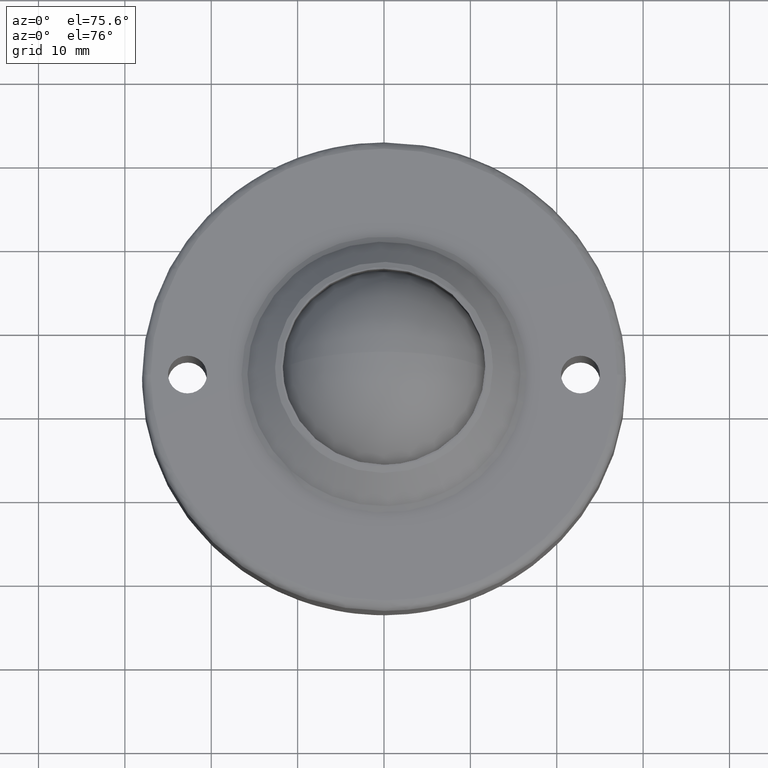
[diagram: clean part render]
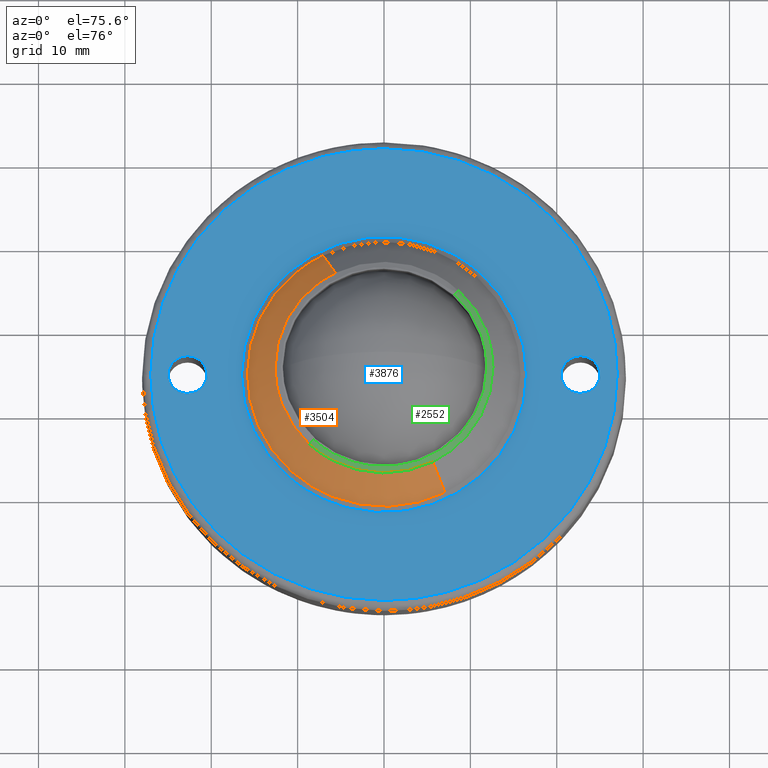
[diagram: same view with three faces highlighted in distinct colors, each labeled with its STEP entity id]
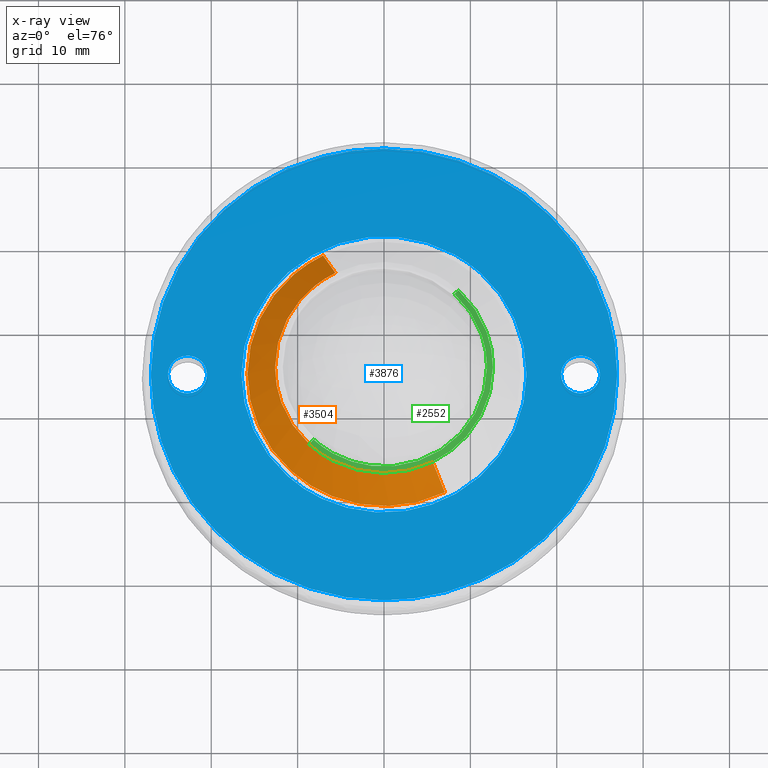
[diagram: x-ray of the same camera — body ghosted, the three highlighted faces saturated]
A machine part, auxiliary view with three faces highlighted in distinct colors.
The next image is the same camera in x-ray (body ghosted, the three faces saturated) — at least one of them is partly hidden behind the body in this view.
Their STEP definitions:

[orange] entity #3504 — the highlighted face is a freeform B-spline surface patch.
#2420=CARTESIAN_POINT('',(-5.629168605710653,11.290365538528540,7.323537246144431));
#2421=VERTEX_POINT('',#2420);
#2436=CARTESIAN_POINT('',(-12.615858797116291,0.0,7.323537245918689));
#2437=VERTEX_POINT('',#2436);
#2438=CARTESIAN_POINT('',(-12.615858797116291,0.0,7.323537245918689));
#2439=CARTESIAN_POINT('',(-12.616053298594800,0.946710319639604,7.323537245924229));
#2440=CARTESIAN_POINT('',(-12.430514682036780,2.585137362794273,7.323537245938057));
#2441=CARTESIAN_POINT('',(-11.778316491133230,4.639656935247343,7.323537245964977));
#2442=CARTESIAN_POINT('',(-11.095646420878850,6.051870617725675,7.323537245988847));
#2443=CARTESIAN_POINT('',(-10.232699549135480,7.446540067851863,7.323537246016722));
#2444=CARTESIAN_POINT('',(-9.187490578544059,8.717144893579718,7.323537246048050));
#2445=CARTESIAN_POINT('',(-7.585035491523128,10.153913804759251,7.323537246093079));
#2446=CARTESIAN_POINT('',(-6.411286023242364,10.900545622734340,7.323537246124280));
#2447=CARTESIAN_POINT('',(-5.629168605710653,11.290365538528540,7.323537246144431));
#2448=B_SPLINE_CURVE_WITH_KNOTS('',3,(#2438,#2439,#2440,#2441,#2442,#2443,#2444,#2445,#2446,#2447),.UNSPECIFIED.,.F.,.U.,(4,1,1,1,1,1,1,4),(0.000000017054921,2.840091102676922,4.915555659835825,6.444844659417327,7.537154786549262,9.831089186078156,11.360379359570761,13.981999071858491),.UNSPECIFIED.);
#2449=EDGE_CURVE('',#2437,#2421,#2448,.T.);
#2451=CARTESIAN_POINT('',(-8.636149627959952,-9.196565270632963,7.323537246495369));
#2452=VERTEX_POINT('',#2451);
#2453=CARTESIAN_POINT('',(-8.636149627959952,-9.196565270632963,7.323537246495369));
#2454=CARTESIAN_POINT('',(-9.086095163239952,-8.774070015102396,7.323537246462777));
#2455=CARTESIAN_POINT('',(-9.960238360008757,-7.823259915086866,7.323537246392559));
#2456=CARTESIAN_POINT('',(-11.099050832848381,-6.123502692153422,7.323537246276788));
#2457=CARTESIAN_POINT('',(-12.002323468719769,-4.107277468080495,7.323537246149627));
#2458=CARTESIAN_POINT('',(-12.513303368181189,-2.012661029620138,7.323537246027339));
#2459=CARTESIAN_POINT('',(-12.615877537265280,-0.617213325299660,7.323537245951262));
#2460=CARTESIAN_POINT('',(-12.615858797116291,0.0,7.323537245918689));
#2461=B_SPLINE_CURVE_WITH_KNOTS('',3,(#2453,#2454,#2455,#2456,#2457,#2458,#2459,#2460),.UNSPECIFIED.,.F.,.U.,(4,1,1,1,1,4),(0.000000013471604,1.851644426683668,3.864311631144989,6.118481542481987,8.453184292965588,10.304828706177391),.UNSPECIFIED.);
#2462=EDGE_CURVE('',#2452,#2437,#2461,.T.);
#2506=CARTESIAN_POINT('',(5.629168605710654,-11.290365538528549,7.323537246144435));
#2507=VERTEX_POINT('',#2506);
#2508=CARTESIAN_POINT('',(5.629168605710654,-11.290365538528549,7.323537246144435));
#2509=CARTESIAN_POINT('',(4.699321744077706,-11.754310337926560,7.323537246171664));
#2510=CARTESIAN_POINT('',(3.255934585192951,-12.262698180094571,7.323537246212383));
#2511=CARTESIAN_POINT('',(1.239858343506224,-12.584636154260741,7.323537246266479));
#2512=CARTESIAN_POINT('',(-0.560659401407900,-12.656056596080040,7.323537246313156));
#2513=CARTESIAN_POINT('',(-2.235252873041409,-12.458852944595700,7.323537246354813));
#2514=CARTESIAN_POINT('',(-3.861025337429702,-12.034922062285490,7.323537246393341));
#2515=CARTESIAN_POINT('',(-5.247874224048516,-11.513622504791540,7.323537246425190));
#2516=CARTESIAN_POINT('',(-6.942463029998607,-10.604036149750730,7.323537246462157));
#2517=CARTESIAN_POINT('',(-8.053525564490432,-9.743816634679613,7.323537246484370));
#2518=CARTESIAN_POINT('',(-8.636149627959952,-9.196565270632963,7.323537246495369));
#2519=B_SPLINE_CURVE_WITH_KNOTS('',3,(#2508,#2509,#2510,#2511,#2512,#2513,#2514,#2515,#2516,#2517,#2518),.UNSPECIFIED.,.F.,.U.,(4,1,1,1,1,1,1,1,4),(0.000000011004065,3.117391989696211,4.556198944195661,6.114904614108340,8.512871279878214,9.591983824020030,11.150684333105850,12.949189091660299,15.347180452303901),.UNSPECIFIED.);
#2520=EDGE_CURVE('',#2507,#2452,#2519,.T.);
#3378=CARTESIAN_POINT('',(7.054260106514825,-14.148656895019030,4.276462753216114));
#3379=VERTEX_POINT('',#3378);
#3380=CARTESIAN_POINT('',(5.629168605710654,-11.290365538528549,7.323537246144435));
#3381=CARTESIAN_POINT('',(7.054260106514825,-14.148656895019030,4.276462753216114));
#3382=QUASI_UNIFORM_CURVE('',1,(#3380,#3381),.UNSPECIFIED.,.F.,.U.);
#3383=EDGE_CURVE('',#2507,#3379,#3382,.T.);
#3413=CARTESIAN_POINT('',(-7.054260106514825,14.148656895019030,4.276462753216118));
#3414=VERTEX_POINT('',#3413);
#3429=CARTESIAN_POINT('',(-5.629168605710653,11.290365538528540,7.323537246144431));
#3430=CARTESIAN_POINT('',(-7.054260106514825,14.148656895019030,4.276462753216118));
#3431=QUASI_UNIFORM_CURVE('',1,(#3429,#3430),.UNSPECIFIED.,.F.,.U.);
#3432=EDGE_CURVE('',#2421,#3414,#3431,.T.);
#3437=CARTESIAN_POINT('',(5.593541317980278,-11.218908254194639,7.399714108824973));
#3438=CARTESIAN_POINT('',(-5.625366936214359,-16.812449572174913,7.399714108824973));
#3439=CARTESIAN_POINT('',(-11.218908254194639,-5.593541317980278,7.399714108824973));
#3440=CARTESIAN_POINT('',(-16.812449572174913,5.625366936214359,7.399714108824973));
#3441=CARTESIAN_POINT('',(-5.593541317980278,11.218908254194639,7.399714108824973));
#3442=CARTESIAN_POINT('',(7.090778076237916,-14.221900611059080,4.198381469423342));
#3443=CARTESIAN_POINT('',(-7.131122534821163,-21.312678687296991,4.198381469423343));
#3444=CARTESIAN_POINT('',(-14.221900611059080,-7.090778076237916,4.198381469423342));
#3445=CARTESIAN_POINT('',(-21.312678687296991,7.131122534821163,4.198381469423343));
#3446=CARTESIAN_POINT('',(-7.090778076237916,14.221900611059080,4.198381469423342));
#3454=(BOUNDED_SURFACE()B_SPLINE_SURFACE(2,1,((#3437,#3442),(#3438,#3443),(#3439,#3444),(#3440,#3445),(#3441,#3446)),.UNSPECIFIED.,.F.,.F.,.U.)B_SPLINE_SURFACE_WITH_KNOTS((3,2,3),(2,2),(0.0,26.329994102707381,52.659988205414763),(0.0,4.637694650768022),.UNSPECIFIED.)GEOMETRIC_REPRESENTATION_ITEM()RATIONAL_B_SPLINE_SURFACE(((1.0,1.0),(0.707106781186548,0.707106781186548),(1.0,1.0),(0.707106781186548,0.707106781186548),(1.0,1.0)))REPRESENTATION_ITEM('')SURFACE());
#3455=ORIENTED_EDGE('',*,*,#2449,.T.);
#3456=ORIENTED_EDGE('',*,*,#3432,.T.);
#3457=CARTESIAN_POINT('',(-15.809714657718709,0.0,4.276462754081235));
#3458=VERTEX_POINT('',#3457);
#3459=CARTESIAN_POINT('',(-15.809714657718709,0.0,4.276462754081235));
#3460=CARTESIAN_POINT('',(-15.809925498610900,1.186372116373617,4.276462754026576));
#3461=CARTESIAN_POINT('',(-15.567188193414490,3.330873000821962,4.276462753921870));
#3462=CARTESIAN_POINT('',(-14.669987340953149,6.074441186925323,4.276462753773593));
#3463=CARTESIAN_POINT('',(-13.642510784783200,8.066249962478032,4.276462753656831));
#3464=CARTESIAN_POINT('',(-12.563017166397399,9.652854523802240,4.276462753557423));
#3465=CARTESIAN_POINT('',(-11.430723541283401,10.970208324008940,4.276462753469070));
#3466=CARTESIAN_POINT('',(-9.655976962058901,12.617812052562220,4.276462753350075));
#3467=CARTESIAN_POINT('',(-8.156981276475282,13.599206938810021,4.276462753268263));
#3468=CARTESIAN_POINT('',(-7.054260106514825,14.148656895019030,4.276462753216118));
#3469=B_SPLINE_CURVE_WITH_KNOTS('',3,(#3459,#3460,#3461,#3462,#3463,#3464,#3465,#3466,#3467,#3468),.UNSPECIFIED.,.F.,.U.,(4,1,1,1,1,1,1,4),(6.744230E-009,3.559094305998316,6.433761524509805,8.623969392673240,10.266612074173930,12.183061386414650,13.825726775922201,17.521709717161169),.UNSPECIFIED.);
#3470=EDGE_CURVE('',#3458,#3414,#3469,.T.);
#3471=ORIENTED_EDGE('',*,*,#3470,.F.);
#3472=CARTESIAN_POINT('',(-10.676818995938200,-11.659871942349120,4.276462753311187));
#3473=VERTEX_POINT('',#3472);
#3474=CARTESIAN_POINT('',(-10.676818995938200,-11.659871942349120,4.276462753311187));
#3475=CARTESIAN_POINT('',(-11.508016519783840,-10.899012965557560,4.276462753373515));
#3476=CARTESIAN_POINT('',(-12.892983905221101,-9.327299060526610,4.276462753494212));
#3477=CARTESIAN_POINT('',(-14.267402260648350,-6.953512049984822,4.276462753658987));
#3478=CARTESIAN_POINT('',(-15.188956384019880,-4.595542714191860,4.276462753811896));
#3479=CARTESIAN_POINT('',(-15.698077911537871,-2.356121299283185,4.276462753948176));
#3480=CARTESIAN_POINT('',(-15.809729718044000,-0.717074583236880,4.276462754041567));
#3481=CARTESIAN_POINT('',(-15.809714657718709,0.0,4.276462754081235));
#3482=B_SPLINE_CURVE_WITH_KNOTS('',3,(#3474,#3475,#3476,#3477,#3478,#3479,#3480,#3481),.UNSPECIFIED.,.F.,.U.,(4,1,1,1,1,4),(0.000000011998520,3.380513014809168,6.248834793166514,8.195173745384928,10.961058417104431,13.112291361832311),.UNSPECIFIED.);
#3483=EDGE_CURVE('',#3473,#3458,#3482,.T.);
#3484=ORIENTED_EDGE('',*,*,#3483,.F.);
#3485=CARTESIAN_POINT('',(7.054260106514825,-14.148656895019030,4.276462753216114));
#3486=CARTESIAN_POINT('',(6.455415895260310,-14.447242525269919,4.276462753206464));
#3487=CARTESIAN_POINT('',(5.036696256655693,-15.045461912829550,4.276462753187261));
#3488=CARTESIAN_POINT('',(2.870000104780396,-15.606203100079590,4.276462753169830));
#3489=CARTESIAN_POINT('',(0.795164084179341,-15.824998610480369,4.276462753163805));
#3490=CARTESIAN_POINT('',(-1.090579275188969,-15.805905592234801,4.276462753165653));
#3491=CARTESIAN_POINT('',(-3.259443310013058,-15.537899015619930,4.276462753176068));
#3492=CARTESIAN_POINT('',(-5.627530045486772,-14.855577230611569,4.276462753200529));
#3493=CARTESIAN_POINT('',(-8.268517630089452,-13.580300326754990,4.276462753245075));
#3494=CARTESIAN_POINT('',(-9.836151060775368,-12.429944504518410,4.276462753284775));
#3495=CARTESIAN_POINT('',(-10.676818995938200,-11.659871942349120,4.276462753311187));
#3496=B_SPLINE_CURVE_WITH_KNOTS('',3,(#3485,#3486,#3487,#3488,#3489,#3490,#3491,#3492,#3493,#3494,#3495),.UNSPECIFIED.,.F.,.U.,(4,1,1,1,1,1,1,1,4),(0.000000021930699,2.007468536873073,4.609743310937320,6.691569149566183,8.252932837019896,10.260379053554541,13.234419802552360,15.613649000464550,19.033777555396881),.UNSPECIFIED.);
#3497=EDGE_CURVE('',#3379,#3473,#3496,.T.);
#3498=ORIENTED_EDGE('',*,*,#3497,.F.);
#3499=ORIENTED_EDGE('',*,*,#3383,.F.);
#3500=ORIENTED_EDGE('',*,*,#2520,.T.);
#3501=ORIENTED_EDGE('',*,*,#2462,.T.);
#3502=EDGE_LOOP('',(#3455,#3456,#3471,#3484,#3498,#3499,#3500,#3501));
#3503=FACE_OUTER_BOUND('',#3502,.T.);
#3504=ADVANCED_FACE('',(#3503),#3454,.T.);

[blue] entity #3876 — the highlighted face is a freeform B-spline surface patch.
#2955=CARTESIAN_POINT('',(-21.229921888198849,-1.658874106171372,3.999999999999895));
#2956=VERTEX_POINT('',#2955);
#2962=CARTESIAN_POINT('',(-20.500000000000000,0.0,3.999999999999895));
#2963=VERTEX_POINT('',#2962);
#2964=CARTESIAN_POINT('',(-21.229921888198849,-1.658874106171372,3.999999999999895));
#2965=CARTESIAN_POINT('',(-21.050741526168689,-1.494872448730834,3.999999999999894));
#2966=CARTESIAN_POINT('',(-20.831694403406441,-1.216387262547727,3.999999999999897));
#2967=CARTESIAN_POINT('',(-20.569593268033159,-0.650776688062810,3.999999999999895));
#2968=CARTESIAN_POINT('',(-20.499750235243759,-0.272077506714236,3.999999999999897));
#2969=CARTESIAN_POINT('',(-20.500000000000000,0.0,3.999999999999895));
#2970=B_SPLINE_CURVE_WITH_KNOTS('',3,(#2964,#2965,#2966,#2967,#2968,#2969),.UNSPECIFIED.,.F.,.U.,(4,1,1,4),(0.000000026461603,0.728646847585417,1.049241509889853,1.865333708997746),.UNSPECIFIED.);
#2971=EDGE_CURVE('',#2956,#2963,#2970,.T.);
#2973=CARTESIAN_POINT('',(-22.750000683581550,2.249999999999896,3.999999999999895));
#2974=VERTEX_POINT('',#2973);
#2975=CARTESIAN_POINT('',(-20.500000000000000,0.0,3.999999999999895));
#2976=CARTESIAN_POINT('',(-20.499730055669509,0.285365371734621,3.999999999999896));
#2977=CARTESIAN_POINT('',(-20.588756036359602,0.745344556434902,3.999999999999903));
#2978=CARTESIAN_POINT('',(-20.876029061026319,1.274768592586612,3.999999999999881));
#2979=CARTESIAN_POINT('',(-21.157768081019089,1.605425891715537,3.999999999999919));
#2980=CARTESIAN_POINT('',(-21.505699077395729,1.894626375489352,3.999999999999899));
#2981=CARTESIAN_POINT('',(-22.023010589539300,2.167099988731219,3.999999999999897));
#2982=CARTESIAN_POINT('',(-22.483059044531078,2.250218879611320,3.999999999999901));
#2983=CARTESIAN_POINT('',(-22.750000683581550,2.249999999999896,3.999999999999895));
#2984=B_SPLINE_CURVE_WITH_KNOTS('',3,(#2975,#2976,#2977,#2978,#2979,#2980,#2981,#2982,#2983),.UNSPECIFIED.,.F.,.U.,(4,1,1,1,1,1,4),(0.000000095419998,0.855966619046118,1.380606845405987,1.794739787191507,2.153707930491998,2.733571667798977,3.534314296758656),.UNSPECIFIED.);
#2985=EDGE_CURVE('',#2963,#2974,#2984,.T.);
#2987=CARTESIAN_POINT('',(-24.270078111801151,1.658874106171369,3.999999999999895));
#2988=VERTEX_POINT('',#2987);
#2989=CARTESIAN_POINT('',(-22.750000683581550,2.249999999999896,3.999999999999895));
#2990=CARTESIAN_POINT('',(-22.941245456880669,2.250063364991440,3.999999999999902));
#2991=CARTESIAN_POINT('',(-23.236752576482139,2.212067432431575,3.999999999999887));
#2992=CARTESIAN_POINT('',(-23.765346862721771,2.034292497595909,3.999999999999901));
#2993=CARTESIAN_POINT('',(-24.077925354546860,1.835228941945708,3.999999999999894));
#2994=CARTESIAN_POINT('',(-24.270078111801151,1.658874106171369,3.999999999999895));
#2995=B_SPLINE_CURVE_WITH_KNOTS('',3,(#2989,#2990,#2991,#2992,#2993,#2994),.UNSPECIFIED.,.F.,.U.,(4,1,1,4),(0.000000010071513,0.573721618611225,0.886660208830019,1.669007874497430),.UNSPECIFIED.);
#2996=EDGE_CURVE('',#2974,#2988,#2995,.T.);
#3026=CARTESIAN_POINT('',(-25.0,0.0,3.999999999999895));
#3027=VERTEX_POINT('',#3026);
#3028=CARTESIAN_POINT('',(-24.270078111801151,1.658874106171369,3.999999999999895));
#3029=CARTESIAN_POINT('',(-24.420544150806940,1.521085314577004,3.999999999999897));
#3030=CARTESIAN_POINT('',(-24.658503793332070,1.234369672527931,3.999999999999903));
#3031=CARTESIAN_POINT('',(-24.928862453017491,0.670251042372402,3.999999999999886));
#3032=CARTESIAN_POINT('',(-25.000176432850239,0.252624196208021,3.999999999999895));
#3033=CARTESIAN_POINT('',(-25.0,0.0,3.999999999999895));
#3034=B_SPLINE_CURVE_WITH_KNOTS('',3,(#3028,#3029,#3030,#3031,#3032,#3033),.UNSPECIFIED.,.F.,.U.,(4,1,1,4),(0.000000026458324,0.612066082734439,1.107532833271015,1.865333708997761),.UNSPECIFIED.);
#3035=EDGE_CURVE('',#2988,#3027,#3034,.T.);
#3037=CARTESIAN_POINT('',(-22.749999316418439,-2.249999999999896,3.999999999999895));
#3038=VERTEX_POINT('',#3037);
#3039=CARTESIAN_POINT('',(-25.0,0.0,3.999999999999895));
#3040=CARTESIAN_POINT('',(-25.000049075603261,-0.184079264415741,3.999999999999887));
#3041=CARTESIAN_POINT('',(-24.962505840608600,-0.487781349234745,3.999999999999904));
#3042=CARTESIAN_POINT('',(-24.815010234173030,-0.925258723098689,3.999999999999901));
#3043=CARTESIAN_POINT('',(-24.634530874361790,-1.248442083217055,3.999999999999877));
#3044=CARTESIAN_POINT('',(-24.386751772956650,-1.557996177697649,3.999999999999902));
#3045=CARTESIAN_POINT('',(-24.037353079091648,-1.874852811489342,3.999999999999927));
#3046=CARTESIAN_POINT('',(-23.477035735784000,-2.169921301759186,3.999999999999837));
#3047=CARTESIAN_POINT('',(-22.998518780955742,-2.250128381616982,3.999999999999933));
#3048=CARTESIAN_POINT('',(-22.749999316418439,-2.249999999999896,3.999999999999895));
#3049=B_SPLINE_CURVE_WITH_KNOTS('',3,(#3039,#3040,#3041,#3042,#3043,#3044,#3045,#3046,#3047,#3048),.UNSPECIFIED.,.F.,.U.,(4,1,1,1,1,1,1,4),(0.000000095416920,0.552226223778925,0.911190605731148,1.380606845403849,1.656720310675566,2.098483789425874,2.788795953964117,3.534314296758661),.UNSPECIFIED.);
#3050=EDGE_CURVE('',#3027,#3038,#3049,.T.);
#3052=CARTESIAN_POINT('',(-22.749999316418439,-2.249999999999896,3.999999999999895));
#3053=CARTESIAN_POINT('',(-22.489193225032849,-2.250183690471011,3.999999999999893));
#3054=CARTESIAN_POINT('',(-22.089473759833549,-2.179684335949624,3.999999999999901));
#3055=CARTESIAN_POINT('',(-21.584090637244842,-1.941411633467907,3.999999999999884));
#3056=CARTESIAN_POINT('',(-21.345264972139951,-1.764598391237616,3.999999999999915));
#3057=CARTESIAN_POINT('',(-21.229921888198849,-1.658874106171372,3.999999999999895));
#3058=B_SPLINE_CURVE_WITH_KNOTS('',3,(#3052,#3053,#3054,#3055,#3056,#3057),.UNSPECIFIED.,.F.,.U.,(4,1,1,4),(0.000000010071373,0.782347675718845,1.199599392792157,1.669007874497413),.UNSPECIFIED.);
#3059=EDGE_CURVE('',#3038,#2956,#3058,.T.);
#3088=CARTESIAN_POINT('',(24.270078111801151,-1.658874106171372,3.999999999999895));
#3089=VERTEX_POINT('',#3088);
#3095=CARTESIAN_POINT('',(25.0,0.0,3.999999999999895));
#3096=VERTEX_POINT('',#3095);
#3097=CARTESIAN_POINT('',(24.270078111801151,-1.658874106171372,3.999999999999895));
#3098=CARTESIAN_POINT('',(24.485224687422409,-1.462157355204552,3.999999999999871));
#3099=CARTESIAN_POINT('',(24.725464313063121,-1.135113121814252,3.999999999999938));
#3100=CARTESIAN_POINT('',(24.950365926406509,-0.553705836648796,3.999999999999833));
#3101=CARTESIAN_POINT('',(25.000098965898790,-0.223465015329859,3.999999999999949));
#3102=CARTESIAN_POINT('',(25.0,0.0,3.999999999999895));
#3103=B_SPLINE_CURVE_WITH_KNOTS('',3,(#3097,#3098,#3099,#3100,#3101,#3102),.UNSPECIFIED.,.F.,.U.,(4,1,1,4),(0.000000026458846,0.874381420482880,1.194977674654859,1.865333708997764),.UNSPECIFIED.);
#3104=EDGE_CURVE('',#3089,#3096,#3103,.T.);
#3106=CARTESIAN_POINT('',(22.749999316418450,2.249999999999896,3.999999999999895));
#3107=VERTEX_POINT('',#3106);
#3108=CARTESIAN_POINT('',(25.0,0.0,3.999999999999895));
#3109=CARTESIAN_POINT('',(25.000083572270860,0.211700027652672,3.999999999999890));
#3110=CARTESIAN_POINT('',(24.951559502548559,0.552185212815979,3.999999999999900));
#3111=CARTESIAN_POINT('',(24.765378648370820,1.034859423334492,3.999999999999890));
#3112=CARTESIAN_POINT('',(24.490115923322659,1.463795930572582,3.999999999999894));
#3113=CARTESIAN_POINT('',(24.054621227785251,1.868393903741020,3.999999999999889));
#3114=CARTESIAN_POINT('',(23.458616954575220,2.172988640334450,3.999999999999901));
#3115=CARTESIAN_POINT('',(22.998520661873808,2.250129837671161,3.999999999999896));
#3116=CARTESIAN_POINT('',(22.749999316418450,2.249999999999896,3.999999999999895));
#3117=B_SPLINE_CURVE_WITH_KNOTS('',3,(#3108,#3109,#3110,#3111,#3112,#3113,#3114,#3115,#3116),.UNSPECIFIED.,.F.,.U.,(4,1,1,1,1,1,4),(0.000000095429155,0.635067933087829,1.021638331506733,1.546277528216927,2.153707930494574,2.788795953965551,3.534314296758656),.UNSPECIFIED.);
#3118=EDGE_CURVE('',#3096,#3107,#3117,.T.);
#3120=CARTESIAN_POINT('',(21.229921888198849,1.658874106171370,3.999999999999895));
#3121=VERTEX_POINT('',#3120);
#3122=CARTESIAN_POINT('',(22.749999316418450,2.249999999999896,3.999999999999895));
#3123=CARTESIAN_POINT('',(22.489189180670280,2.250205771354807,3.999999999999889));
#3124=CARTESIAN_POINT('',(22.089478846520141,2.179665867989364,3.999999999999904));
#3125=CARTESIAN_POINT('',(21.584088078694890,1.941413406441899,3.999999999999890));
#3126=CARTESIAN_POINT('',(21.345266627400019,1.764600126291464,3.999999999999898));
#3127=CARTESIAN_POINT('',(21.229921888198849,1.658874106171370,3.999999999999895));
#3128=B_SPLINE_CURVE_WITH_KNOTS('',3,(#3122,#3123,#3124,#3125,#3126,#3127),.UNSPECIFIED.,.F.,.U.,(4,1,1,4),(0.000000010071219,0.782347675718787,1.199599392792139,1.669007874497418),.UNSPECIFIED.);
#3129=EDGE_CURVE('',#3107,#3121,#3128,.T.);
#3159=CARTESIAN_POINT('',(20.500000000000000,0.0,3.999999999999895));
#3160=VERTEX_POINT('',#3159);
#3161=CARTESIAN_POINT('',(21.229921888198849,1.658874106171370,3.999999999999895));
#3162=CARTESIAN_POINT('',(21.014766626502841,1.462165340203034,3.999999999999893));
#3163=CARTESIAN_POINT('',(20.774536974863469,1.135107167270949,3.999999999999892));
#3164=CARTESIAN_POINT('',(20.549647559807749,0.553704142152556,3.999999999999899));
#3165=CARTESIAN_POINT('',(20.499884368588091,0.223468111988009,3.999999999999894));
#3166=CARTESIAN_POINT('',(20.500000000000000,0.0,3.999999999999895));
#3167=B_SPLINE_CURVE_WITH_KNOTS('',3,(#3161,#3162,#3163,#3164,#3165,#3166),.UNSPECIFIED.,.F.,.U.,(4,1,1,4),(0.000000026459543,0.874381420483601,1.194977674655384,1.865333708997764),.UNSPECIFIED.);
#3168=EDGE_CURVE('',#3121,#3160,#3167,.T.);
#3170=CARTESIAN_POINT('',(22.750000683581561,-2.249999999999896,3.999999999999895));
#3171=VERTEX_POINT('',#3170);
#3172=CARTESIAN_POINT('',(20.500000000000000,0.0,3.999999999999895));
#3173=CARTESIAN_POINT('',(20.499973752563999,-0.165666967643457,3.999999999999893));
#3174=CARTESIAN_POINT('',(20.537784379401401,-0.506192624918941,3.999999999999903));
#3175=CARTESIAN_POINT('',(20.730953279944099,-1.057151748476924,3.999999999999856));
#3176=CARTESIAN_POINT('',(21.053022143069370,-1.514369743819892,3.999999999999982));
#3177=CARTESIAN_POINT('',(21.475243574940158,-1.873963554194170,3.999999999999831));
#3178=CARTESIAN_POINT('',(22.004658062341729,-2.161226877166304,3.999999999999939));
#3179=CARTESIAN_POINT('',(22.464631591646938,-2.250294810318283,3.999999999999912));
#3180=CARTESIAN_POINT('',(22.750000683581561,-2.249999999999896,3.999999999999895));
#3181=B_SPLINE_CURVE_WITH_KNOTS('',3,(#3172,#3173,#3174,#3175,#3176,#3177,#3178,#3179,#3180),.UNSPECIFIED.,.F.,.U.,(4,1,1,1,1,1,4),(0.000000095424625,0.497001369246581,1.021638331503838,1.739574480850962,2.153707930493221,2.678347650922957,3.534314296758658),.UNSPECIFIED.);
#3182=EDGE_CURVE('',#3160,#3171,#3181,.T.);
#3184=CARTESIAN_POINT('',(22.750000683581561,-2.249999999999896,3.999999999999895));
#3185=CARTESIAN_POINT('',(23.045604365662609,-2.250350367954399,3.999999999999917));
#3186=CARTESIAN_POINT('',(23.601616013469471,-2.138639999078073,3.999999999999852));
#3187=CARTESIAN_POINT('',(24.077926816840169,-1.835214038440843,3.999999999999928));
#3188=CARTESIAN_POINT('',(24.270078111801151,-1.658874106171372,3.999999999999895));
#3189=B_SPLINE_CURVE_WITH_KNOTS('',3,(#3184,#3185,#3186,#3187,#3188),.UNSPECIFIED.,.F.,.U.,(4,1,4),(0.000000010071015,0.886660208829925,1.669007874497414),.UNSPECIFIED.);
#3190=EDGE_CURVE('',#3171,#3089,#3189,.T.);
#3534=CARTESIAN_POINT('',(-27.000000000249010,-1.999253E-015,3.999999999999915));
#3535=VERTEX_POINT('',#3534);
#3547=CARTESIAN_POINT('',(-6.225065E-011,27.0,3.999999999999915));
#3548=VERTEX_POINT('',#3547);
#3549=CARTESIAN_POINT('',(-27.000000000249010,-1.999253E-015,3.999999999999915));
#3550=CARTESIAN_POINT('',(-27.000027194940682,1.104460546721489,3.999999999999915));
#3551=CARTESIAN_POINT('',(-26.864287558665669,3.313384318166939,3.999999999999927));
#3552=CARTESIAN_POINT('',(-26.307297309738161,6.304975150941569,3.999999999999885));
#3553=CARTESIAN_POINT('',(-25.417728307872899,9.270209455368290,3.999999999999928));
#3554=CARTESIAN_POINT('',(-24.313767038622910,11.867571660733040,3.999999999999917));
#3555=CARTESIAN_POINT('',(-22.877375700119110,14.421256304076991,3.999999999999873));
#3556=CARTESIAN_POINT('',(-20.943683947735622,17.185218789017998,3.999999999999928));
#3557=CARTESIAN_POINT('',(-18.482857550129420,19.817923224426600,3.999999999999977));
#3558=CARTESIAN_POINT('',(-15.755245109192140,21.987101942125818,3.999999999999897));
#3559=CARTESIAN_POINT('',(-13.517765445970710,23.413593209262501,3.999999999999915));
#3560=CARTESIAN_POINT('',(-10.917417713739191,24.762830303619229,3.999999999999919));
#3561=CARTESIAN_POINT('',(-8.069292637767342,25.841422723834029,3.999999999999916));
#3562=CARTESIAN_POINT('',(-4.252125730568346,26.760293175745620,3.999999999999897));
#3563=CARTESIAN_POINT('',(-1.656714136425366,27.000205130986799,3.999999999999988));
#3564=CARTESIAN_POINT('',(-6.225065E-011,27.0,3.999999999999915));
#3565=B_SPLINE_CURVE_WITH_KNOTS('',3,(#3549,#3550,#3551,#3552,#3553,#3554,#3555,#3556,#3557,#3558,#3559,#3560,#3561,#3562,#3563,#3564),.UNSPECIFIED.,.F.,.U.,(4,1,1,1,1,1,1,1,1,1,1,1,1,4),(0.000000015637035,3.313384321022895,6.626797575309887,9.111855924169859,12.590938183415251,15.075988726446219,17.892382154311608,22.696805071879830,25.844549100990459,28.329595877092231,30.648981130290640,34.625075645931943,37.441470424048113,42.411567354984371),.UNSPECIFIED.);
#3566=EDGE_CURVE('',#3535,#3548,#3565,.T.);
#3568=CARTESIAN_POINT('',(27.000000000124508,1.143812E-016,3.999999999999915));
#3569=VERTEX_POINT('',#3568);
#3570=CARTESIAN_POINT('',(-6.225065E-011,27.0,3.999999999999915));
#3571=CARTESIAN_POINT('',(1.435811365410230,27.000103081564038,3.999999999999916));
#3572=CARTESIAN_POINT('',(4.141718800811462,26.783626818072829,3.999999999999914));
#3573=CARTESIAN_POINT('',(7.537538518928295,25.988200244613079,3.999999999999911));
#3574=CARTESIAN_POINT('',(10.347858076212910,24.982584635299869,3.999999999999905));
#3575=CARTESIAN_POINT('',(12.750812980677500,23.855085689538321,3.999999999999914));
#3576=CARTESIAN_POINT('',(15.591500171765620,22.140683095863650,3.999999999999874));
#3577=CARTESIAN_POINT('',(18.056850696430821,20.167534358589659,3.999999999999981));
#3578=CARTESIAN_POINT('',(20.334339211976090,17.833350816509299,3.999999999999933));
#3579=CARTESIAN_POINT('',(21.987114131238251,15.755258586114881,3.999999999999847));
#3580=CARTESIAN_POINT('',(23.413603547901449,13.517768865921861,4.000000000000012));
#3581=CARTESIAN_POINT('',(24.533659990230991,11.358966673983151,3.999999999999921));
#3582=CARTESIAN_POINT('',(25.562630412181370,8.853189464624469,3.999999999999888));
#3583=CARTESIAN_POINT('',(26.317696296099101,6.249422072765601,3.999999999999992));
#3584=CARTESIAN_POINT('',(26.865571445167362,3.202933380706626,3.999999999999745));
#3585=CARTESIAN_POINT('',(27.000057127326482,1.214915274406447,4.000000000000117));
#3586=CARTESIAN_POINT('',(27.000000000124508,1.143812E-016,3.999999999999915));
#3587=B_SPLINE_CURVE_WITH_KNOTS('',3,(#3570,#3571,#3572,#3573,#3574,#3575,#3576,#3577,#3578,#3579,#3580,#3581,#3582,#3583,#3584,#3585,#3586),.UNSPECIFIED.,.F.,.U.,(4,1,1,1,1,1,1,1,1,1,1,1,1,1,4),(0.000000015623911,4.307421200946365,8.117834655097859,10.437221499207160,13.253622333742690,16.070021461278749,20.377461583780509,22.696805071877680,25.844549100989269,28.329595877091609,30.648981130290220,33.134040216663138,36.447454916530774,38.766825470545342,42.411567354984378),.UNSPECIFIED.);
#3588=EDGE_CURVE('',#3548,#3569,#3587,.T.);
#3641=CARTESIAN_POINT('',(-6.225065E-011,-27.0,3.999999999999915));
#3642=VERTEX_POINT('',#3641);
#3643=CARTESIAN_POINT('',(27.000000000124508,1.143812E-016,3.999999999999915));
#3644=CARTESIAN_POINT('',(27.000330180180470,-1.877624982340758,3.999999999999919));
#3645=CARTESIAN_POINT('',(26.704954844674479,-4.693872452268272,3.999999999999913));
#3646=CARTESIAN_POINT('',(25.678351244042020,-8.540748672798035,3.999999999999914));
#3647=CARTESIAN_POINT('',(24.516132069507542,-11.473091314830500,3.999999999999897));
#3648=CARTESIAN_POINT('',(22.924657603157460,-14.385691336964920,3.999999999999919));
#3649=CARTESIAN_POINT('',(21.028709103476629,-17.042960198086188,3.999999999999917));
#3650=CARTESIAN_POINT('',(18.597312707209252,-19.692783637016799,3.999999999999942));
#3651=CARTESIAN_POINT('',(16.034988903327420,-21.808851955448159,3.999999999999917));
#3652=CARTESIAN_POINT('',(13.517759974606850,-23.413592309167129,3.999999999999909));
#3653=CARTESIAN_POINT('',(11.358966050160969,-24.533657041632189,3.999999999999922));
#3654=CARTESIAN_POINT('',(8.750916153606205,-25.604627778352562,3.999999999999911));
#3655=CARTESIAN_POINT('',(4.969989218687277,-26.676058849329010,3.999999999999910));
#3656=CARTESIAN_POINT('',(1.877613562144452,-27.000292297796872,3.999999999999912));
#3657=CARTESIAN_POINT('',(-6.225065E-011,-27.0,3.999999999999915));
#3658=B_SPLINE_CURVE_WITH_KNOTS('',3,(#3643,#3644,#3645,#3646,#3647,#3648,#3649,#3650,#3651,#3652,#3653,#3654,#3655,#3656,#3657),.UNSPECIFIED.,.F.,.U.,(4,1,1,1,1,1,1,1,1,1,1,1,4),(0.000000015629638,5.632785822044973,8.449178156994435,11.928257272547830,15.075988726441761,18.389410704889428,21.702770332610481,25.844549100988509,28.329595877091009,30.648981130289862,33.134040216662953,36.778793565509247,42.411567354984392),.UNSPECIFIED.);
#3659=EDGE_CURVE('',#3569,#3642,#3658,.T.);
#3661=CARTESIAN_POINT('',(-6.225065E-011,-27.0,3.999999999999915));
#3662=CARTESIAN_POINT('',(-1.656706282080842,-27.000172197944728,3.999999999999917));
#3663=CARTESIAN_POINT('',(-4.362576164638283,-26.750128338616321,3.999999999999924));
#3664=CARTESIAN_POINT('',(-8.443834307669757,-25.741147670802629,3.999999999999891));
#3665=CARTESIAN_POINT('',(-11.886820614401950,-24.352014964872652,3.999999999999925));
#3666=CARTESIAN_POINT('',(-15.418477657061910,-22.279145850917939,3.999999999999883));
#3667=CARTESIAN_POINT('',(-18.532660071767300,-19.786765957557272,3.999999999999932));
#3668=CARTESIAN_POINT('',(-20.995764986932880,-17.085753166378019,3.999999999999949));
#3669=CARTESIAN_POINT('',(-23.169774356087832,-14.018976976865421,3.999999999999915));
#3670=CARTESIAN_POINT('',(-24.667820314958568,-11.174590488581250,3.999999999999949));
#3671=CARTESIAN_POINT('',(-25.794697095632660,-8.113788619638900,3.999999999999929));
#3672=CARTESIAN_POINT('',(-26.710797356129468,-4.638653097531914,3.999999999999869));
#3673=CARTESIAN_POINT('',(-27.000289013437499,-1.877617462301163,3.999999999999969));
#3674=CARTESIAN_POINT('',(-27.000000000249010,-1.999253E-015,3.999999999999915));
#3675=B_SPLINE_CURVE_WITH_KNOTS('',3,(#3661,#3662,#3663,#3664,#3665,#3666,#3667,#3668,#3669,#3670,#3671,#3672,#3673,#3674),.UNSPECIFIED.,.F.,.U.,(4,1,1,1,1,1,1,1,1,1,1,4),(0.000000015632104,4.970088664307276,8.117834655102172,12.590938183412280,16.070021461280209,20.377461583780601,24.519181274100809,27.004232548020230,31.643005362368321,34.128060514843114,36.778793565509218,42.411567354984392),.UNSPECIFIED.);
#3676=EDGE_CURVE('',#3642,#3535,#3675,.T.);
#3713=CARTESIAN_POINT('',(11.142991333055569,12.168966435370530,3.999999999999918));
#3714=VERTEX_POINT('',#3713);
#3723=CARTESIAN_POINT('',(-16.500000000000000,0.0,3.999999999999920));
#3724=VERTEX_POINT('',#3723);
#3725=CARTESIAN_POINT('',(-16.500000000000000,0.0,3.999999999999920));
#3726=CARTESIAN_POINT('',(-16.500103205946289,0.993528082406100,3.999999999999930));
#3727=CARTESIAN_POINT('',(-16.367215195410420,2.458933434122004,3.999999999999909));
#3728=CARTESIAN_POINT('',(-15.876704118154230,4.616521348226988,3.999999999999936));
#3729=CARTESIAN_POINT('',(-15.321437260244419,6.215748329166201,3.999999999999879));
#3730=CARTESIAN_POINT('',(-14.465596256388400,8.011088218990031,3.999999999999933));
#3731=CARTESIAN_POINT('',(-13.292814252870031,9.891356310635743,3.999999999999931));
#3732=CARTESIAN_POINT('',(-11.640178103695620,11.791663210174750,3.999999999999854));
#3733=CARTESIAN_POINT('',(-9.730843186567807,13.389849380354351,3.999999999999873));
#3734=CARTESIAN_POINT('',(-7.810464354058566,14.591704311477940,3.999999999999998));
#3735=CARTESIAN_POINT('',(-5.926894932338228,15.441251284408651,3.999999999999839));
#3736=CARTESIAN_POINT('',(-3.886051161345303,16.081633796687619,3.999999999999936));
#3737=CARTESIAN_POINT('',(-1.802241327919405,16.455686530080879,3.999999999999914));
#3738=CARTESIAN_POINT('',(0.187681956456862,16.530490436285280,3.999999999999919));
#3739=CARTESIAN_POINT('',(2.270935047680505,16.387565328345659,3.999999999999916));
#3740=CARTESIAN_POINT('',(4.374801799511038,15.977020173198280,3.999999999999926));
#3741=CARTESIAN_POINT('',(6.599819215571921,15.174177083501920,3.999999999999923));
#3742=CARTESIAN_POINT('',(8.876566470065313,13.996929297477619,3.999999999999856));
#3743=CARTESIAN_POINT('',(10.318759376339260,12.923921028275490,4.000000000000033));
#3744=CARTESIAN_POINT('',(11.142991333055569,12.168966435370530,3.999999999999918));
#3745=B_SPLINE_CURVE_WITH_KNOTS('',3,(#3725,#3726,#3727,#3728,#3729,#3730,#3731,#3732,#3733,#3734,#3735,#3736,#3737,#3738,#3739,#3740,#3741,#3742,#3743,#3744),.UNSPECIFIED.,.F.,.U.,(4,1,1,1,1,1,1,1,1,1,1,1,1,1,1,1,1,4),(0.000000070441679,2.980556407005530,4.396354947703728,6.631796721855817,8.047588649727043,10.357549698920540,13.263637425675530,15.573599165413190,17.809048156683531,20.044453494412391,21.758274641605620,24.217265736574330,26.378206516740381,27.719473116210491,30.476523205547860,32.786490754536310,34.798391610968061,38.151533604188792),.UNSPECIFIED.);
#3746=EDGE_CURVE('',#3724,#3714,#3745,.T.);
#3748=CARTESIAN_POINT('',(-11.142991333055569,-12.168966435370530,3.999999999999917));
#3749=VERTEX_POINT('',#3748);
#3750=CARTESIAN_POINT('',(-11.142991333055569,-12.168966435370530,3.999999999999917));
#3751=CARTESIAN_POINT('',(-11.773805867829710,-11.591382187434240,3.999999999999908));
#3752=CARTESIAN_POINT('',(-13.067441183343110,-10.207291252518459,3.999999999999931));
#3753=CARTESIAN_POINT('',(-14.440431377771180,-8.111332509344333,3.999999999999913));
#3754=CARTESIAN_POINT('',(-15.454061431430320,-5.906091796528425,3.999999999999926));
#3755=CARTESIAN_POINT('',(-16.257647948948971,-3.349814496029965,3.999999999999924));
#3756=CARTESIAN_POINT('',(-16.500292193236220,-1.282977484915627,3.999999999999913));
#3757=CARTESIAN_POINT('',(-16.500000000000000,0.0,3.999999999999920));
#3758=B_SPLINE_CURVE_WITH_KNOTS('',3,(#3750,#3751,#3752,#3753,#3754,#3755,#3756,#3757),.UNSPECIFIED.,.F.,.U.,(4,1,1,1,1,4),(0.000000011598095,2.565896271545627,5.666367763333250,7.483862662013190,9.835949014189300,13.684801537558011),.UNSPECIFIED.);
#3759=EDGE_CURVE('',#3749,#3724,#3758,.T.);
#3803=CARTESIAN_POINT('',(16.500000000000000,0.0,3.999999999999915));
#3804=VERTEX_POINT('',#3803);
#3805=CARTESIAN_POINT('',(16.500000000000000,0.0,3.999999999999915));
#3806=CARTESIAN_POINT('',(16.500253721969450,-1.266773876000352,3.999999999999919));
#3807=CARTESIAN_POINT('',(16.278639083998410,-3.179179479635236,3.999999999999904));
#3808=CARTESIAN_POINT('',(15.512645886093781,-5.754865630683140,3.999999999999930));
#3809=CARTESIAN_POINT('',(14.522804200335891,-7.985201932782242,3.999999999999873));
#3810=CARTESIAN_POINT('',(13.032056056697620,-10.259107939415539,3.999999999999966));
#3811=CARTESIAN_POINT('',(11.304175356835540,-12.089929719439770,3.999999999999844));
#3812=CARTESIAN_POINT('',(9.387815519387223,-13.636089847470700,3.999999999999990));
#3813=CARTESIAN_POINT('',(7.290546391868639,-14.890112773797650,3.999999999999811));
#3814=CARTESIAN_POINT('',(5.013187565353722,-15.772119245573871,3.999999999999941));
#3815=CARTESIAN_POINT('',(2.957842882513816,-16.267009418796661,3.999999999999951));
#3816=CARTESIAN_POINT('',(1.180536336200472,-16.491543501108598,3.999999999999812));
#3817=CARTESIAN_POINT('',(-0.784111141761376,-16.521063891039269,4.000000000000203));
#3818=CARTESIAN_POINT('',(-3.012439614982021,-16.287053337279769,3.999999999999802));
#3819=CARTESIAN_POINT('',(-5.544333204602775,-15.624548290989569,3.999999999999976));
#3820=CARTESIAN_POINT('',(-8.405684809451314,-14.328546343590860,3.999999999999871));
#3821=CARTESIAN_POINT('',(-10.208913288637190,-13.024647255305631,3.999999999999967));
#3822=CARTESIAN_POINT('',(-11.142991333055569,-12.168966435370530,3.999999999999917));
#3823=B_SPLINE_CURVE_WITH_KNOTS('',3,(#3805,#3806,#3807,#3808,#3809,#3810,#3811,#3812,#3813,#3814,#3815,#3816,#3817,#3818,#3819,#3820,#3821,#3822),.UNSPECIFIED.,.F.,.U.,(4,1,1,1,1,1,1,1,1,1,1,1,1,1,1,4),(0.000000070451939,3.800241472603396,5.737618082935633,8.047588649736227,11.102698640483570,13.859753929354850,15.573599165420770,18.479687210883402,21.162177205416238,22.876015515830609,24.813383325543210,26.527236388953579,28.762680703510259,31.519725015633359,34.351308891637849,38.151533604188799),.UNSPECIFIED.);
#3824=EDGE_CURVE('',#3804,#3749,#3823,.T.);
#3826=CARTESIAN_POINT('',(11.142991333055569,12.168966435370530,3.999999999999918));
#3827=CARTESIAN_POINT('',(11.878996452939679,11.495161574586550,3.999999999999913));
#3828=CARTESIAN_POINT('',(13.107633075088099,10.145699116401280,3.999999999999929));
#3829=CARTESIAN_POINT('',(14.464789034589909,8.044298675417249,3.999999999999911));
#3830=CARTESIAN_POINT('',(15.432651702228300,5.974268420329525,3.999999999999923));
#3831=CARTESIAN_POINT('',(16.257633790476270,3.349809098420060,3.999999999999918));
#3832=CARTESIAN_POINT('',(16.500303407678210,1.282979949967104,3.999999999999907));
#3833=CARTESIAN_POINT('',(16.500000000000000,0.0,3.999999999999915));
#3834=B_SPLINE_CURVE_WITH_KNOTS('',3,(#3826,#3827,#3828,#3829,#3830,#3831,#3832,#3833),.UNSPECIFIED.,.F.,.U.,(4,1,1,1,1,4),(0.000000011600113,2.993548277996682,5.452547723984189,7.483862662013584,9.835949014189348,13.684801537558020),.UNSPECIFIED.);
#3835=EDGE_CURVE('',#3714,#3804,#3834,.T.);
#3843=CARTESIAN_POINT('',(-29.697299895605191,-29.697299895337519,3.999999999999915));
#3844=CARTESIAN_POINT('',(29.697301343873558,-29.697299895337519,3.999999999999915));
#3845=CARTESIAN_POINT('',(-29.697299895605191,29.697301343730391,3.999999999999915));
#3846=CARTESIAN_POINT('',(29.697301343873558,29.697301343730391,3.999999999999915));
#3847=B_SPLINE_SURFACE_WITH_KNOTS('',1,1,((#3843,#3845),(#3844,#3846)),.UNSPECIFIED.,.F.,.F.,.U.,(2,2),(2,2),(0.0,59.394601239478753),(0.0,59.394601239067910),.UNSPECIFIED.);
#3848=ORIENTED_EDGE('',*,*,#3676,.F.);
#3849=ORIENTED_EDGE('',*,*,#3659,.F.);
#3850=ORIENTED_EDGE('',*,*,#3588,.F.);
#3851=ORIENTED_EDGE('',*,*,#3566,.F.);
#3852=EDGE_LOOP('',(#3848,#3849,#3850,#3851));
#3853=FACE_OUTER_BOUND('',#3852,.T.);
#3854=ORIENTED_EDGE('',*,*,#3746,.T.);
#3855=ORIENTED_EDGE('',*,*,#3835,.T.);
#3856=ORIENTED_EDGE('',*,*,#3824,.T.);
#3857=ORIENTED_EDGE('',*,*,#3759,.T.);
#3858=EDGE_LOOP('',(#3854,#3855,#3856,#3857));
#3859=FACE_BOUND('',#3858,.T.);
#3860=ORIENTED_EDGE('',*,*,#3182,.F.);
#3861=ORIENTED_EDGE('',*,*,#3168,.F.);
#3862=ORIENTED_EDGE('',*,*,#3129,.F.);
#3863=ORIENTED_EDGE('',*,*,#3118,.F.);
#3864=ORIENTED_EDGE('',*,*,#3104,.F.);
#3865=ORIENTED_EDGE('',*,*,#3190,.F.);
#3866=EDGE_LOOP('',(#3860,#3861,#3862,#3863,#3864,#3865));
#3867=FACE_BOUND('',#3866,.T.);
#3868=ORIENTED_EDGE('',*,*,#3050,.F.);
#3869=ORIENTED_EDGE('',*,*,#3035,.F.);
#3870=ORIENTED_EDGE('',*,*,#2996,.F.);
#3871=ORIENTED_EDGE('',*,*,#2985,.F.);
#3872=ORIENTED_EDGE('',*,*,#2971,.F.);
#3873=ORIENTED_EDGE('',*,*,#3059,.F.);
#3874=EDGE_LOOP('',(#3868,#3869,#3870,#3871,#3872,#3873));
#3875=FACE_BOUND('',#3874,.T.);
#3876=ADVANCED_FACE('',(#3853,#3859,#3867,#3875),#3847,.T.);

[green] entity #2552 — the highlighted face is a freeform B-spline surface patch.
#2293=CARTESIAN_POINT('',(-8.163616795164135,-8.693368912708042,7.600000000000000));
#2294=VERTEX_POINT('',#2293);
#2309=CARTESIAN_POINT('',(11.925573454835000,0.0,7.600000000000000));
#2310=VERTEX_POINT('',#2309);
#2311=CARTESIAN_POINT('',(11.925573454835000,0.0,7.600000000000000));
#2312=CARTESIAN_POINT('',(11.925606627242960,-0.613687393421234,7.600000000000001));
#2313=CARTESIAN_POINT('',(11.836207257035531,-1.768853657182409,7.599999999999993));
#2314=CARTESIAN_POINT('',(11.445006946767171,-3.498132452324634,7.599999999999977));
#2315=CARTESIAN_POINT('',(10.768087291608900,-5.255013811821327,7.600000000000060));
#2316=CARTESIAN_POINT('',(9.861319301794643,-6.782285960359248,7.599999999999987));
#2317=CARTESIAN_POINT('',(8.814145374791391,-8.074253957204828,7.599999999999963));
#2318=CARTESIAN_POINT('',(7.880774205521736,-8.982306175929708,7.600000000000032));
#2319=CARTESIAN_POINT('',(6.655802179710042,-9.938347406053840,7.599999999999977));
#2320=CARTESIAN_POINT('',(5.374793936364054,-10.690611670286801,7.600000000000017));
#2321=CARTESIAN_POINT('',(3.769918445952692,-11.350747760041161,7.599999999999987));
#2322=CARTESIAN_POINT('',(2.054775897173498,-11.804448346245261,7.599999999999975));
#2323=CARTESIAN_POINT('',(0.141470016470399,-11.978198979628971,7.600000000000073));
#2324=CARTESIAN_POINT('',(-1.699573370046161,-11.843710471906130,7.599999999999955));
#2325=CARTESIAN_POINT('',(-3.255439164517684,-11.506133328710421,7.600000000000015));
#2326=CARTESIAN_POINT('',(-4.720996450081054,-10.986402176339711,7.600000000000022));
#2327=CARTESIAN_POINT('',(-6.400293081762062,-10.137804564147020,7.599999999999952));
#2328=CARTESIAN_POINT('',(-7.532151956044742,-9.286573082479881,7.600000000000063));
#2329=CARTESIAN_POINT('',(-8.163616795164135,-8.693368912708042,7.600000000000000));
#2330=B_SPLINE_CURVE_WITH_KNOTS('',3,(#2311,#2312,#2313,#2314,#2315,#2316,#2317,#2318,#2319,#2320,#2321,#2322,#2323,#2324,#2325,#2326,#2327,#2328,#2329),.UNSPECIFIED.,.F.,.U.,(4,1,1,1,1,1,1,1,1,1,1,1,1,1,1,1,4),(0.000000032160123,1.841062532554584,3.465548184751679,5.306616740026193,7.472597570773800,8.772191262906269,10.288369134253490,11.371361691350801,13.429040849627350,14.728558017107259,16.569644497044759,18.735631005222519,20.468414657162619,22.092894676429570,23.500790726102348,25.125264149805851,27.724412789244621),.UNSPECIFIED.);
#2331=EDGE_CURVE('',#2310,#2294,#2330,.T.);
#2333=CARTESIAN_POINT('',(8.163616795164135,8.693368912708046,7.600000000000000));
#2334=VERTEX_POINT('',#2333);
#2335=CARTESIAN_POINT('',(8.163616795164135,8.693368912708046,7.600000000000000));
#2336=CARTESIAN_POINT('',(8.847986456127122,8.051008359734983,7.600000000000006));
#2337=CARTESIAN_POINT('',(9.735019448707412,6.994693429648797,7.599999999999990));
#2338=CARTESIAN_POINT('',(10.666799606533440,5.391238623470094,7.600000000000001));
#2339=CARTESIAN_POINT('',(11.358333637339021,3.807477029407932,7.600000000000012));
#2340=CARTESIAN_POINT('',(11.823063338010710,1.978653610747132,7.599999999999977));
#2341=CARTESIAN_POINT('',(11.925586614469511,0.583440976754920,7.599999999999973));
#2342=CARTESIAN_POINT('',(11.925573454835000,0.0,7.600000000000000));
#2343=B_SPLINE_CURVE_WITH_KNOTS('',3,(#2335,#2336,#2337,#2338,#2339,#2340,#2341,#2342),.UNSPECIFIED.,.F.,.U.,(4,1,1,1,1,4),(0.000000013581980,2.815758387928304,4.109486133136620,5.555398050593018,7.990658878338643,9.740992956163519),.UNSPECIFIED.);
#2344=EDGE_CURVE('',#2334,#2310,#2343,.T.);
#2410=CARTESIAN_POINT('',(8.636149627959954,9.196565270632963,7.323537246495369));
#2411=VERTEX_POINT('',#2410);
#2412=CARTESIAN_POINT('',(8.163616795164135,8.693368912708046,7.600000000000000));
#2413=CARTESIAN_POINT('',(8.266874821916566,8.803327542843830,7.600248580362123));
#2414=CARTESIAN_POINT('',(8.440544054281061,8.988266491302548,7.541398427627129));
#2415=CARTESIAN_POINT('',(8.585066627084173,9.142167399821670,7.394779718558430));
#2416=CARTESIAN_POINT('',(8.636149627959954,9.196565270632963,7.323537246495369));
#2417=B_SPLINE_CURVE_WITH_KNOTS('',3,(#2412,#2413,#2414,#2415,#2416),.UNSPECIFIED.,.F.,.U.,(4,1,4),(0.000000037722060,0.452376817010652,0.761901339916377),.UNSPECIFIED.);
#2418=EDGE_CURVE('',#2334,#2411,#2417,.T.);
#2451=CARTESIAN_POINT('',(-8.636149627959952,-9.196565270632963,7.323537246495369));
#2452=VERTEX_POINT('',#2451);
#2464=CARTESIAN_POINT('',(-8.163616795164135,-8.693368912708042,7.600000000000000));
#2465=CARTESIAN_POINT('',(-8.266875755035400,-8.803328536514455,7.600250978429102));
#2466=CARTESIAN_POINT('',(-8.440540661174120,-8.988262878010644,7.541391105561512));
#2467=CARTESIAN_POINT('',(-8.585069110513626,-9.142170044405425,7.394784242585047));
#2468=CARTESIAN_POINT('',(-8.636149627959952,-9.196565270632963,7.323537246495369));
#2469=B_SPLINE_CURVE_WITH_KNOTS('',3,(#2464,#2465,#2466,#2467,#2468),.UNSPECIFIED.,.F.,.U.,(4,1,4),(0.000000037721931,0.452376817010597,0.761901339916375),.UNSPECIFIED.);
#2470=EDGE_CURVE('',#2294,#2452,#2469,.T.);
#2475=CARTESIAN_POINT('',(7.896017805670594,8.893932213923343,7.599316014785424));
#2476=CARTESIAN_POINT('',(8.016454604343897,8.780834531968555,7.599316014785424));
#2477=CARTESIAN_POINT('',(16.804714236131726,0.528109420367164,7.599316014785424));
#2478=CARTESIAN_POINT('',(8.666411828249444,-8.138302407882279,7.599316014785424));
#2479=CARTESIAN_POINT('',(0.528109420367165,-16.804714236131726,7.599316014785424));
#2480=CARTESIAN_POINT('',(-8.260150211422122,-8.551989124528962,7.599316014785424));
#2481=CARTESIAN_POINT('',(-8.380587010096853,-8.438891442572832,7.599316014785424));
#2482=CARTESIAN_POINT('',(8.190781274943184,9.225948475711476,7.615739194950663));
#2483=CARTESIAN_POINT('',(8.315714057475534,9.108628783887898,7.615739194950665));
#2484=CARTESIAN_POINT('',(17.432045124977915,0.547824087777256,7.615739194950665));
#2485=CARTESIAN_POINT('',(8.989934606377585,-8.442110518600327,7.615739194950664));
#2486=CARTESIAN_POINT('',(0.547824087777257,-17.432045124977915,7.615739194950665));
#2487=CARTESIAN_POINT('',(-8.568506979726639,-8.871240428865846,7.615739194950663));
#2488=CARTESIAN_POINT('',(-8.693439762260468,-8.753920737040877,7.615739194950666));
#2489=CARTESIAN_POINT('',(8.396516816699711,9.457685283734280,7.297490846458054));
#2490=CARTESIAN_POINT('',(8.524587653202083,9.337418763086218,7.297490846458053));
#2491=CARTESIAN_POINT('',(17.869902165390261,0.561584299618209,7.297490846458056));
#2492=CARTESIAN_POINT('',(9.215743232504236,-8.654158932886027,7.297490846458053));
#2493=CARTESIAN_POINT('',(0.561584299618210,-17.869902165390261,7.297490846458056));
#2494=CARTESIAN_POINT('',(-8.783730212571523,-9.094067701920793,7.297490846458053));
#2495=CARTESIAN_POINT('',(-8.911801049075416,-8.973801181271307,7.297490846458054));
#2503=(BOUNDED_SURFACE()B_SPLINE_SURFACE(2,2,((#2475,#2482,#2489),(#2476,#2483,#2490),(#2477,#2484,#2491),(#2478,#2485,#2492),(#2479,#2486,#2493),(#2480,#2487,#2494),(#2481,#2488,#2495)),.UNSPECIFIED.,.F.,.F.,.U.)B_SPLINE_SURFACE_WITH_KNOTS((3,1,2,1,3),(3,3),(0.0,0.418924567192903,21.365152926864560,42.311381286536211,42.730305853734173),(0.0,0.848564315677615),.UNSPECIFIED.)GEOMETRIC_REPRESENTATION_ITEM()RATIONAL_B_SPLINE_SURFACE(((0.945121865297257,0.863345596025661,0.944194226551693),(0.939649581385276,0.858346799162439,0.938727313695837),(0.660563101873889,0.603408159137769,0.659914758046826),(0.934177297473295,0.853348002299216,0.933260400839980),(0.660563101873889,0.603408159137769,0.659914758046826),(0.939649581385342,0.858346799162499,0.938727313695902),(0.945121865297389,0.863345596025782,0.944194226551825)))REPRESENTATION_ITEM('')SURFACE());
#2504=ORIENTED_EDGE('',*,*,#2331,.T.);
#2505=ORIENTED_EDGE('',*,*,#2470,.T.);
#2506=CARTESIAN_POINT('',(5.629168605710654,-11.290365538528549,7.323537246144435));
#2507=VERTEX_POINT('',#2506);
#2508=CARTESIAN_POINT('',(5.629168605710654,-11.290365538528549,7.323537246144435));
#2509=CARTESIAN_POINT('',(4.699321744077706,-11.754310337926560,7.323537246171664));
#2510=CARTESIAN_POINT('',(3.255934585192951,-12.262698180094571,7.323537246212383));
#2511=CARTESIAN_POINT('',(1.239858343506224,-12.584636154260741,7.323537246266479));
#2512=CARTESIAN_POINT('',(-0.560659401407900,-12.656056596080040,7.323537246313156));
#2513=CARTESIAN_POINT('',(-2.235252873041409,-12.458852944595700,7.323537246354813));
#2514=CARTESIAN_POINT('',(-3.861025337429702,-12.034922062285490,7.323537246393341));
#2515=CARTESIAN_POINT('',(-5.247874224048516,-11.513622504791540,7.323537246425190));
#2516=CARTESIAN_POINT('',(-6.942463029998607,-10.604036149750730,7.323537246462157));
#2517=CARTESIAN_POINT('',(-8.053525564490432,-9.743816634679613,7.323537246484370));
#2518=CARTESIAN_POINT('',(-8.636149627959952,-9.196565270632963,7.323537246495369));
#2519=B_SPLINE_CURVE_WITH_KNOTS('',3,(#2508,#2509,#2510,#2511,#2512,#2513,#2514,#2515,#2516,#2517,#2518),.UNSPECIFIED.,.F.,.U.,(4,1,1,1,1,1,1,1,4),(0.000000011004065,3.117391989696211,4.556198944195661,6.114904614108340,8.512871279878214,9.591983824020030,11.150684333105850,12.949189091660299,15.347180452303901),.UNSPECIFIED.);
#2520=EDGE_CURVE('',#2507,#2452,#2519,.T.);
#2521=ORIENTED_EDGE('',*,*,#2520,.F.);
#2522=CARTESIAN_POINT('',(12.615858797116299,0.0,7.323537245918701));
#2523=VERTEX_POINT('',#2522);
#2524=CARTESIAN_POINT('',(12.615858797116299,0.0,7.323537245918701));
#2525=CARTESIAN_POINT('',(12.616030310566041,-0.946709948782295,7.323537245924229));
#2526=CARTESIAN_POINT('',(12.438772341895410,-2.512313432686379,7.323537245937492));
#2527=CARTESIAN_POINT('',(11.804765698930380,-4.571010151969020,7.323537245963918));
#2528=CARTESIAN_POINT('',(11.024842676978709,-6.220885553163935,7.323537245991499));
#2529=CARTESIAN_POINT('',(9.896846537656082,-7.926153349373337,7.323537246027215));
#2530=CARTESIAN_POINT('',(8.589279679858766,-9.308473760511353,7.323537246065107));
#2531=CARTESIAN_POINT('',(7.093342154174202,-10.473317226827589,7.323537246106347));
#2532=CARTESIAN_POINT('',(6.183142524057335,-11.014205627111339,7.323537246129946));
#2533=CARTESIAN_POINT('',(5.629168605710654,-11.290365538528549,7.323537246144435));
#2534=B_SPLINE_CURVE_WITH_KNOTS('',3,(#2524,#2525,#2526,#2527,#2528,#2529,#2530,#2531,#2532,#2533),.UNSPECIFIED.,.F.,.U.,(4,1,1,1,1,1,1,4),(0.000000017053861,2.840091102676137,4.697082649359691,6.444844659416975,8.301798882078344,10.814202972980880,12.125024165868750,13.981999071858500),.UNSPECIFIED.);
#2535=EDGE_CURVE('',#2523,#2507,#2534,.T.);
#2536=ORIENTED_EDGE('',*,*,#2535,.F.);
#2537=CARTESIAN_POINT('',(8.636149627959954,9.196565270632963,7.323537246495369));
#2538=CARTESIAN_POINT('',(9.144791424870505,8.718970217650089,7.323537246458523));
#2539=CARTESIAN_POINT('',(10.172768249530520,7.579144445290055,7.323537246374823));
#2540=CARTESIAN_POINT('',(11.247515742534940,5.834082991904360,7.323537246258106));
#2541=CARTESIAN_POINT('',(11.926015890335769,4.194516778193062,7.323537246155999));
#2542=CARTESIAN_POINT('',(12.454754431057831,2.361445821846596,7.323537246047119));
#2543=CARTESIAN_POINT('',(12.616077228183300,0.966101102652833,7.323537245969711));
#2544=CARTESIAN_POINT('',(12.615858797116299,0.0,7.323537245918701));
#2545=B_SPLINE_CURVE_WITH_KNOTS('',3,(#2537,#2538,#2539,#2540,#2541,#2542,#2543,#2544),.UNSPECIFIED.,.F.,.U.,(4,1,1,1,1,4),(0.000000013474327,2.093165978303864,4.588881511917883,6.118481542482289,7.406593510339111,10.304828706177400),.UNSPECIFIED.);
#2546=EDGE_CURVE('',#2411,#2523,#2545,.T.);
#2547=ORIENTED_EDGE('',*,*,#2546,.F.);
#2548=ORIENTED_EDGE('',*,*,#2418,.F.);
#2549=ORIENTED_EDGE('',*,*,#2344,.T.);
#2550=EDGE_LOOP('',(#2504,#2505,#2521,#2536,#2547,#2548,#2549));
#2551=FACE_OUTER_BOUND('',#2550,.T.);
#2552=ADVANCED_FACE('',(#2551),#2503,.T.);